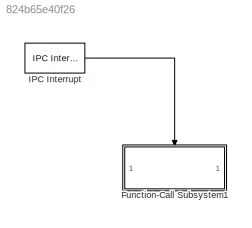
MODEL slx_824b65e40f26
KIND model
CONFIG AbsTol = auto
CONFIG EnableMultiTasking = off
CONFIG FixedStep = auto
CONFIG MaxStep = auto
CONFIG MinStep = auto
CONFIG RelTol = 1e-3
CONFIG SampleTimeConstraint = Unconstrained
CONFIG SolverName = FixedStepAuto
CONFIG StartTime = 0.0
CONFIG StopTime = 10.0
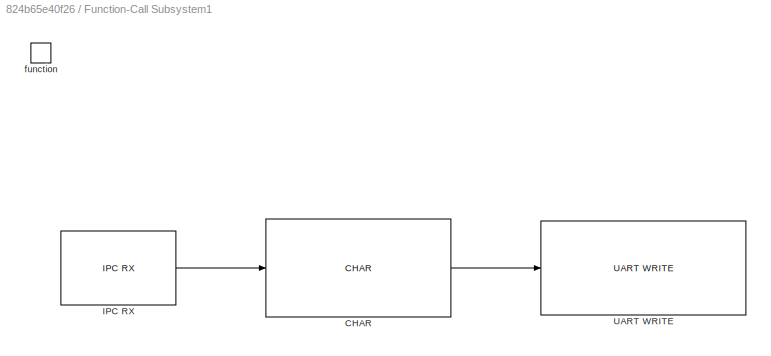
BLOCK [SubSystem] Function-Call Subsystem1
  TreatAsAtomicUnit = on
BLOCK [Reference] Function-Call Subsystem1/CHAR  REF=peripheral_library_blocks_am263x/CHAR
  SourceBlock = peripheral_library_blocks_am263x/CHAR
  SourceType = CHAR
BLOCK [Reference] Function-Call Subsystem1/IPC RX  REF=peripheral_library_blocks_am263px/IPC RX
  SourceBlock = peripheral_library_blocks_am263px/IPC RX
  SourceType = IPC_RX_AM263PX
BLOCK [Reference] Function-Call Subsystem1/UART WRITE  REF=peripheral_library_blocks_am263x/UART WRITE
  SourceBlock = peripheral_library_blocks_am263x/UART WRITE
  SourceType = UART_WRITE_AM263X
BLOCK [TriggerPort] Function-Call Subsystem1/function
  StatesWhenEnabling = held
  TriggerType = function-call
  VariantControl = (inherit)
BLOCK [Reference] IPC Interrupt  REF=IPC_HWI_lib/IPC Interrupt
  SourceBlock = IPC_HWI_lib/IPC Interrupt
LINE Function-Call Subsystem1/CHAR:1 -> Function-Call Subsystem1/UART WRITE:1
LINE Function-Call Subsystem1/IPC RX:1 -> Function-Call Subsystem1/CHAR:1
LINE IPC Interrupt:1 -> Function-Call Subsystem1:trigger
